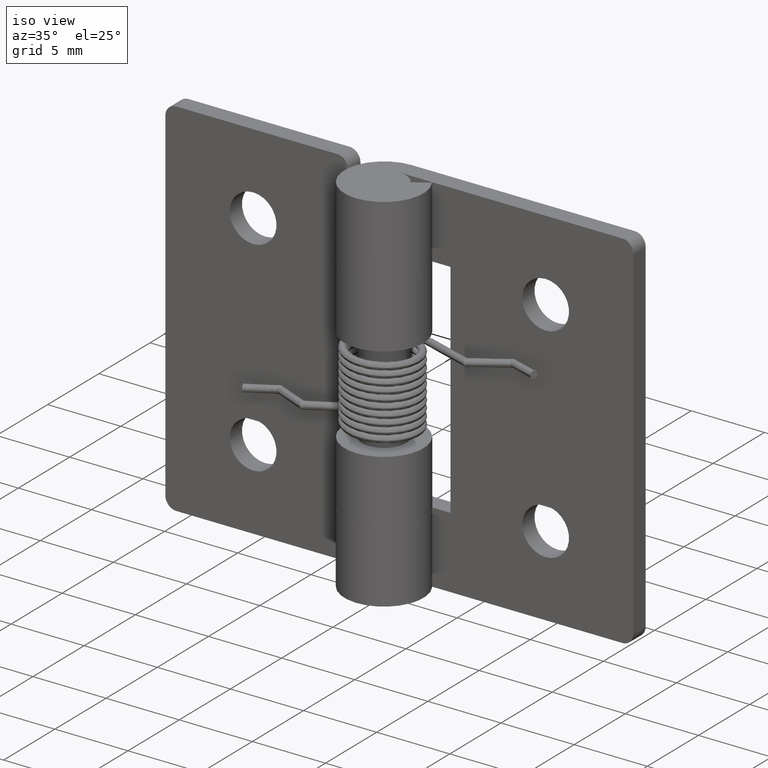
[diagram: clean part render]
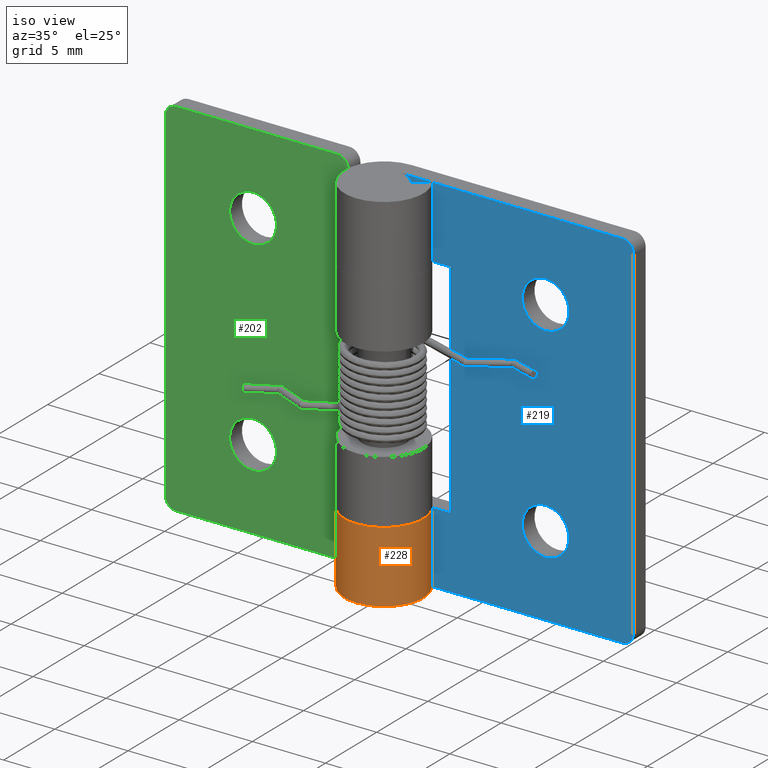
[diagram: same view with three faces highlighted in distinct colors, each labeled with its STEP entity id]
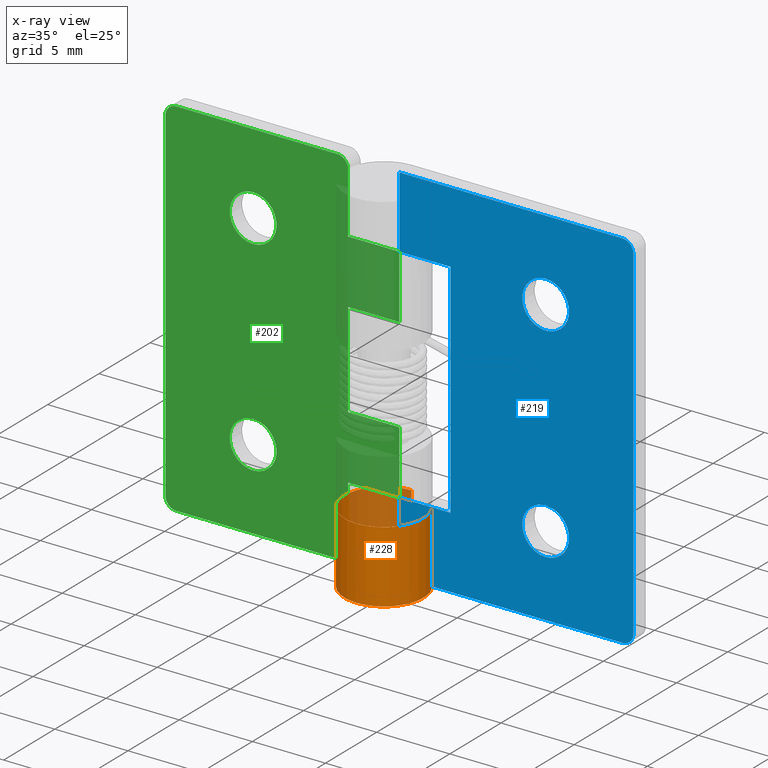
[diagram: x-ray of the same camera — body ghosted, the three highlighted faces saturated]
A machine part, iso view with three faces highlighted in distinct colors.
The next image is the same camera in x-ray (body ghosted, the three faces saturated) — at least one of them is partly hidden behind the body in this view.
Their STEP definitions:

[orange] entity #228 — the highlighted cylindrical surface (partial cylindrical patch) has radius 2.7 mm, axis along (-0, -0, -1).
#228=ADVANCED_FACE('',(#685),#684,.T.);
#684=CYLINDRICAL_SURFACE('',#1185,2.70000000000E+00);
#685=FACE_OUTER_BOUND('',#1186,.T.);
#1182=CARTESIAN_POINT('',(0.00000000000E+00,0.00000000000E+00,-9.75000015000E+02));
#1183=DIRECTION('',(-0.00000000000E+00,-0.00000000000E+00,-1.00000000000E+00));
#1184=DIRECTION('',(4.77158760260E-01,8.78817112662E-01,0.00000000000E+00));
#1185=AXIS2_PLACEMENT_3D('',#1182,#1183,#1184);
#1186=EDGE_LOOP('',(#3184,#3185,#3186,#3187));
#3184=ORIENTED_EDGE('',*,*,#3424,.F.);
#3185=ORIENTED_EDGE('',*,*,#3402,.F.);
#3186=ORIENTED_EDGE('',*,*,#3419,.F.);
#3187=ORIENTED_EDGE('',*,*,#3422,.T.);
#3402=EDGE_CURVE('',#4161,#4168,#4169,.T.);
#3419=EDGE_CURVE('',#4275,#4161,#4282,.T.);
#3422=EDGE_CURVE('',#4275,#4295,#4302,.T.);
#3424=EDGE_CURVE('',#4168,#4295,#4314,.T.);
#4161=VERTEX_POINT('',#5024);
#4168=VERTEX_POINT('',#5028);
#4169=LINE('',#5029,#5030);
#4275=VERTEX_POINT('',#5096);
#4282=CIRCLE('',#5103,2.70000000000E+00);
#4295=VERTEX_POINT('',#5108);
#4302=LINE('',#5112,#5113);
#4314=CIRCLE('',#5121,2.70000000000E+00);
#5024=CARTESIAN_POINT('',(0.00000000000E+00,2.70000500000E+00,0.00000000000E+00));
#5028=CARTESIAN_POINT('',(0.00000000000E+00,2.70000500000E+00,4.89999400000E+00));
#5029=CARTESIAN_POINT('',(0.00000000000E+00,2.70000500000E+00,0.00000000000E+00));
#5030=VECTOR('',#5031,4.89999400000E+00);
#5031=DIRECTION('',(0.00000000000E+00,0.00000000000E+00,1.00000000000E+00));
#5096=CARTESIAN_POINT('',(2.27760839479E+00,1.45000000000E+00,0.00000000000E+00));
#5100=CARTESIAN_POINT('',(0.00000000000E+00,0.00000000000E+00,0.00000000000E+00));
#5101=DIRECTION('',(0.00000000000E+00,0.00000000000E+00,-1.00000000000E+00));
#5102=DIRECTION('',(1.83690953073E-16,1.00000000000E+00,0.00000000000E+00));
#5103=AXIS2_PLACEMENT_3D('',#5100,#5101,#5102);
#5108=CARTESIAN_POINT('',(2.27760839479E+00,1.45000000000E+00,4.89999400000E+00));
#5112=CARTESIAN_POINT('',(2.27760839479E+00,1.45000000000E+00,0.00000000000E+00));
#5113=VECTOR('',#5114,4.89999400000E+00);
#5114=DIRECTION('',(0.00000000000E+00,0.00000000000E+00,1.00000000000E+00));
#5118=CARTESIAN_POINT('',(0.00000000000E+00,0.00000000000E+00,4.89999400000E+00));
#5119=DIRECTION('',(0.00000000000E+00,-0.00000000000E+00,1.00000000000E+00));
#5120=DIRECTION('',(1.83690953073E-16,1.00000000000E+00,0.00000000000E+00));
#5121=AXIS2_PLACEMENT_3D('',#5118,#5119,#5120);

[blue] entity #219 — the highlighted planar face has unit normal (0, -1, 0).
#219=ADVANCED_FACE('',(#591,#592,#593),#590,.T.);
#590=PLANE('',#1136);
#591=FACE_OUTER_BOUND('',#1137,.T.);
#592=FACE_BOUND('',#1138,.T.);
#593=FACE_BOUND('',#1139,.T.);
#1133=CARTESIAN_POINT('',(-1.59999920000E+00,1.50000000000E+00,2.74999835000E+01));
#1134=DIRECTION('',(0.00000000000E+00,-1.00000000000E+00,0.00000000000E+00));
#1135=DIRECTION('',(0.00000000000E+00,0.00000000000E+00,-1.00000000000E+00));
#1136=AXIS2_PLACEMENT_3D('',#1133,#1134,#1135);
#1137=EDGE_LOOP('',(#3122,#3123,#3124,#3125,#3126,#3127,#3128,#3129,#3130,#3131));
#1138=EDGE_LOOP('',(#3132,#3133));
#1139=EDGE_LOOP('',(#3134,#3135));
#3122=ORIENTED_EDGE('',*,*,#3388,.T.);
#3123=ORIENTED_EDGE('',*,*,#3380,.T.);
#3124=ORIENTED_EDGE('',*,*,#3389,.F.);
#3125=ORIENTED_EDGE('',*,*,#3390,.F.);
#3126=ORIENTED_EDGE('',*,*,#3391,.T.);
#3127=ORIENTED_EDGE('',*,*,#3387,.T.);
#3128=ORIENTED_EDGE('',*,*,#3392,.T.);
#3129=ORIENTED_EDGE('',*,*,#3393,.F.);
#3130=ORIENTED_EDGE('',*,*,#3394,.T.);
#3131=ORIENTED_EDGE('',*,*,#3376,.T.);
#3132=ORIENTED_EDGE('',*,*,#3395,.T.);
#3133=ORIENTED_EDGE('',*,*,#3396,.T.);
#3134=ORIENTED_EDGE('',*,*,#3397,.T.);
#3135=ORIENTED_EDGE('',*,*,#3398,.T.);
#3376=EDGE_CURVE('',#3990,#3991,#3992,.T.);
#3380=EDGE_CURVE('',#4018,#4019,#4020,.T.);
#3387=EDGE_CURVE('',#4047,#4061,#4068,.T.);
#3388=EDGE_CURVE('',#3991,#4018,#4074,.T.);
#3389=EDGE_CURVE('',#4080,#4019,#4081,.T.);
#3390=EDGE_CURVE('',#4087,#4080,#4088,.T.);
#3391=EDGE_CURVE('',#4087,#4047,#4094,.T.);
#3392=EDGE_CURVE('',#4061,#4100,#4101,.T.);
#3393=EDGE_CURVE('',#4107,#4100,#4108,.T.);
#3394=EDGE_CURVE('',#4107,#3990,#4114,.T.);
#3395=EDGE_CURVE('',#4120,#4121,#4122,.T.);
#3396=EDGE_CURVE('',#4121,#4120,#4128,.T.);
#3397=EDGE_CURVE('',#4134,#4135,#4136,.T.);
#3398=EDGE_CURVE('',#4135,#4134,#4142,.T.);
#3990=VERTEX_POINT('',#4920);
#3991=VERTEX_POINT('',#4921);
#3992=CIRCLE('',#4925,7.50000000000E-01);
#4018=VERTEX_POINT('',#4938);
#4019=VERTEX_POINT('',#4939);
#4020=CIRCLE('',#4943,7.50000000000E-01);
#4047=VERTEX_POINT('',#4957);
#4061=VERTEX_POINT('',#4965);
#4068=LINE('',#4969,#4970);
#4074=LINE('',#4972,#4973);
#4080=VERTEX_POINT('',#4975);
#4081=LINE('',#4976,#4977);
#4087=VERTEX_POINT('',#4979);
#4088=LINE('',#4980,#4981);
#4094=LINE('',#4983,#4984);
#4100=VERTEX_POINT('',#4986);
#4101=LINE('',#4987,#4988);
#4107=VERTEX_POINT('',#4990);
#4108=LINE('',#4991,#4992);
#4114=LINE('',#4994,#4995);
#4120=VERTEX_POINT('',#4997);
#4121=VERTEX_POINT('',#4998);
#4122=CIRCLE('',#5002,1.60000000000E+00);
#4128=CIRCLE('',#5006,1.60000000000E+00);
#4134=VERTEX_POINT('',#5007);
#4135=VERTEX_POINT('',#5008);
#4136=CIRCLE('',#5012,1.60000000000E+00);
#4142=CIRCLE('',#5016,1.60000000000E+00);
#4920=CARTESIAN_POINT('',(1.52499920000E+01,1.50000000000E+00,0.00000000000E+00));
#4921=CARTESIAN_POINT('',(1.59999920000E+01,1.50000000000E+00,7.50000000000E-01));
#4922=CARTESIAN_POINT('',(1.52499920000E+01,1.50000000000E+00,7.50000000000E-01));
#4923=DIRECTION('',(0.00000000000E+00,-1.00000000000E+00,0.00000000000E+00));
#4924=DIRECTION('',(-0.00000000000E+00,-0.00000000000E+00,-1.00000000000E+00));
#4925=AXIS2_PLACEMENT_3D('',#4922,#4923,#4924);
#4938=CARTESIAN_POINT('',(1.59999920000E+01,1.50000000000E+00,2.42499850000E+01));
#4939=CARTESIAN_POINT('',(1.52499920000E+01,1.50000000000E+00,2.49999850000E+01));
#4940=CARTESIAN_POINT('',(1.52499920000E+01,1.50000000000E+00,2.42499850000E+01));
#4941=DIRECTION('',(0.00000000000E+00,-1.00000000000E+00,0.00000000000E+00));
#4942=DIRECTION('',(-0.00000000000E+00,-0.00000000000E+00,-1.00000000000E+00));
#4943=AXIS2_PLACEMENT_3D('',#4940,#4941,#4942);
#4957=CARTESIAN_POINT('',(3.50000000000E+00,1.50000000000E+00,2.00999980000E+01));
#4965=CARTESIAN_POINT('',(3.50000000000E+00,1.50000000000E+00,4.89999400000E+00));
#4969=CARTESIAN_POINT('',(3.50000000000E+00,1.50000000000E+00,2.00999980000E+01));
#4970=VECTOR('',#4971,1.52000040000E+01);
#4971=DIRECTION('',(0.00000000000E+00,0.00000000000E+00,-1.00000000000E+00));
#4972=CARTESIAN_POINT('',(1.59999920000E+01,1.50000000000E+00,7.50000000000E-01));
#4973=VECTOR('',#4974,2.34999850000E+01);
#4974=DIRECTION('',(0.00000000000E+00,0.00000000000E+00,1.00000000000E+00));
#4975=CARTESIAN_POINT('',(0.00000000000E+00,1.50000000000E+00,2.49999850000E+01));
#4976=CARTESIAN_POINT('',(0.00000000000E+00,1.50000000000E+00,2.49999850000E+01));
#4977=VECTOR('',#4978,1.52499920000E+01);
#4978=DIRECTION('',(1.00000000000E+00,0.00000000000E+00,0.00000000000E+00));
#4979=CARTESIAN_POINT('',(0.00000000000E+00,1.50000000000E+00,2.00999980000E+01));
#4980=CARTESIAN_POINT('',(0.00000000000E+00,1.50000000000E+00,2.00999980000E+01));
#4981=VECTOR('',#4982,4.89998700000E+00);
#4982=DIRECTION('',(0.00000000000E+00,0.00000000000E+00,1.00000000000E+00));
#4983=CARTESIAN_POINT('',(0.00000000000E+00,1.50000000000E+00,2.00999980000E+01));
#4984=VECTOR('',#4985,3.50000000000E+00);
#4985=DIRECTION('',(1.00000000000E+00,0.00000000000E+00,0.00000000000E+00));
#4986=CARTESIAN_POINT('',(0.00000000000E+00,1.50000000000E+00,4.89999400000E+00));
#4987=CARTESIAN_POINT('',(3.50000000000E+00,1.50000000000E+00,4.89999400000E+00));
#4988=VECTOR('',#4989,3.50000000000E+00);
#4989=DIRECTION('',(-1.00000000000E+00,0.00000000000E+00,0.00000000000E+00));
#4990=CARTESIAN_POINT('',(0.00000000000E+00,1.50000000000E+00,0.00000000000E+00));
#4991=CARTESIAN_POINT('',(0.00000000000E+00,1.50000000000E+00,0.00000000000E+00));
#4992=VECTOR('',#4993,4.89999400000E+00);
#4993=DIRECTION('',(0.00000000000E+00,0.00000000000E+00,1.00000000000E+00));
#4994=CARTESIAN_POINT('',(0.00000000000E+00,1.50000000000E+00,0.00000000000E+00));
#4995=VECTOR('',#4996,1.52499920000E+01);
#4996=DIRECTION('',(1.00000000000E+00,0.00000000000E+00,0.00000000000E+00));
#4997=CARTESIAN_POINT('',(9.99999300000E+00,1.50000000000E+00,2.10999920000E+01));
#4998=CARTESIAN_POINT('',(9.99999300000E+00,1.50000000000E+00,1.78999920000E+01));
#4999=CARTESIAN_POINT('',(9.99999300000E+00,1.50000000000E+00,1.94999920000E+01));
#5000=DIRECTION('',(0.00000000000E+00,1.00000000000E+00,0.00000000000E+00));
#5001=DIRECTION('',(-1.22460635382E-16,0.00000000000E+00,1.00000000000E+00));
#5002=AXIS2_PLACEMENT_3D('',#4999,#5000,#5001);
#5003=CARTESIAN_POINT('',(9.99999300000E+00,1.50000000000E+00,1.94999920000E+01));
#5004=DIRECTION('',(0.00000000000E+00,1.00000000000E+00,0.00000000000E+00));
#5005=DIRECTION('',(-1.22460635382E-16,0.00000000000E+00,1.00000000000E+00));
#5006=AXIS2_PLACEMENT_3D('',#5003,#5004,#5005);
#5007=CARTESIAN_POINT('',(9.99999300000E+00,1.50000000000E+00,7.10000000000E+00));
#5008=CARTESIAN_POINT('',(9.99999300000E+00,1.50000000000E+00,3.90000000000E+00));
#5009=CARTESIAN_POINT('',(9.99999300000E+00,1.50000000000E+00,5.50000000000E+00));
#5010=DIRECTION('',(0.00000000000E+00,1.00000000000E+00,0.00000000000E+00));
#5011=DIRECTION('',(-1.22460635382E-16,0.00000000000E+00,1.00000000000E+00));
#5012=AXIS2_PLACEMENT_3D('',#5009,#5010,#5011);
#5013=CARTESIAN_POINT('',(9.99999300000E+00,1.50000000000E+00,5.50000000000E+00));
#5014=DIRECTION('',(0.00000000000E+00,1.00000000000E+00,0.00000000000E+00));
#5015=DIRECTION('',(-1.22460635382E-16,0.00000000000E+00,1.00000000000E+00));
#5016=AXIS2_PLACEMENT_3D('',#5013,#5014,#5015);

[green] entity #202 — the highlighted planar face has unit normal (0, 1, 0).
#202=ADVANCED_FACE('',(#419,#420,#421),#418,.F.);
#418=PLANE('',#1049);
#419=FACE_OUTER_BOUND('',#1050,.T.);
#420=FACE_BOUND('',#1051,.T.);
#421=FACE_BOUND('',#1052,.T.);
#1046=CARTESIAN_POINT('',(-1.76000088000E+01,1.50000000000E+00,-2.49999850000E+00));
#1047=DIRECTION('',(0.00000000000E+00,1.00000000000E+00,0.00000000000E+00));
#1048=DIRECTION('',(0.00000000000E+00,0.00000000000E+00,1.00000000000E+00));
#1049=AXIS2_PLACEMENT_3D('',#1046,#1047,#1048);
#1050=EDGE_LOOP('',(#3038,#3039,#3040,#3041,#3042,#3043,#3044,#3045,#3046,#3047,#3048,#3049,#3050,#3051,#3052,#3053));
#1051=EDGE_LOOP('',(#3054,#3055));
#1052=EDGE_LOOP('',(#3056,#3057));
#3038=ORIENTED_EDGE('',*,*,#3324,.T.);
#3039=ORIENTED_EDGE('',*,*,#3359,.T.);
#3040=ORIENTED_EDGE('',*,*,#3331,.T.);
#3041=ORIENTED_EDGE('',*,*,#3360,.F.);
#3042=ORIENTED_EDGE('',*,*,#3334,.T.);
#3043=ORIENTED_EDGE('',*,*,#3361,.F.);
#3044=ORIENTED_EDGE('',*,*,#3327,.T.);
#3045=ORIENTED_EDGE('',*,*,#3354,.T.);
#3046=ORIENTED_EDGE('',*,*,#3358,.T.);
#3047=ORIENTED_EDGE('',*,*,#3362,.T.);
#3048=ORIENTED_EDGE('',*,*,#3338,.F.);
#3049=ORIENTED_EDGE('',*,*,#3346,.F.);
#3050=ORIENTED_EDGE('',*,*,#3344,.F.);
#3051=ORIENTED_EDGE('',*,*,#3363,.T.);
#3052=ORIENTED_EDGE('',*,*,#3348,.T.);
#3053=ORIENTED_EDGE('',*,*,#3352,.T.);
#3054=ORIENTED_EDGE('',*,*,#3364,.T.);
#3055=ORIENTED_EDGE('',*,*,#3365,.T.);
#3056=ORIENTED_EDGE('',*,*,#3366,.T.);
#3057=ORIENTED_EDGE('',*,*,#3367,.T.);
#3324=EDGE_CURVE('',#3650,#3651,#3652,.T.);
#3327=EDGE_CURVE('',#3670,#3671,#3672,.T.);
#3331=EDGE_CURVE('',#3697,#3690,#3698,.T.);
#3334=EDGE_CURVE('',#3717,#3710,#3718,.T.);
#3338=EDGE_CURVE('',#3737,#3744,#3745,.T.);
#3344=EDGE_CURVE('',#3778,#3785,#3786,.T.);
#3346=EDGE_CURVE('',#3785,#3737,#3798,.T.);
#3348=EDGE_CURVE('',#3811,#3804,#3812,.T.);
#3352=EDGE_CURVE('',#3804,#3650,#3838,.T.);
#3354=EDGE_CURVE('',#3671,#3844,#3851,.T.);
#3358=EDGE_CURVE('',#3844,#3871,#3878,.T.);
#3359=EDGE_CURVE('',#3651,#3697,#3884,.T.);
#3360=EDGE_CURVE('',#3717,#3690,#3890,.T.);
#3361=EDGE_CURVE('',#3670,#3710,#3896,.T.);
#3362=EDGE_CURVE('',#3871,#3744,#3902,.T.);
#3363=EDGE_CURVE('',#3778,#3811,#3908,.T.);
#3364=EDGE_CURVE('',#3914,#3915,#3916,.T.);
#3365=EDGE_CURVE('',#3915,#3914,#3922,.T.);
#3366=EDGE_CURVE('',#3928,#3929,#3930,.T.);
#3367=EDGE_CURVE('',#3929,#3928,#3936,.T.);
#3650=VERTEX_POINT('',#4724);
#3651=VERTEX_POINT('',#4725);
#3652=CIRCLE('',#4729,7.50000000000E-01);
#3670=VERTEX_POINT('',#4736);
#3671=VERTEX_POINT('',#4737);
#3672=CIRCLE('',#4741,7.50000000000E-01);
#3690=VERTEX_POINT('',#4748);
#3697=VERTEX_POINT('',#4752);
#3698=CIRCLE('',#4756,7.50000000000E-01);
#3710=VERTEX_POINT('',#4760);
#3717=VERTEX_POINT('',#4764);
#3718=CIRCLE('',#4768,7.50000000000E-01);
#3737=VERTEX_POINT('',#4777);
#3744=VERTEX_POINT('',#4781);
#3745=LINE('',#4782,#4783);
#3778=VERTEX_POINT('',#4802);
#3785=VERTEX_POINT('',#4807);
#3786=LINE('',#4808,#4809);
#3798=LINE('',#4814,#4815);
#3804=VERTEX_POINT('',#4817);
#3811=VERTEX_POINT('',#4821);
#3812=LINE('',#4822,#4823);
#3838=LINE('',#4838,#4839);
#3844=VERTEX_POINT('',#4841);
#3851=LINE('',#4845,#4846);
#3871=VERTEX_POINT('',#4857);
#3878=LINE('',#4862,#4863);
#3884=LINE('',#4865,#4866);
#3890=LINE('',#4868,#4869);
#3896=LINE('',#4871,#4872);
#3902=LINE('',#4874,#4875);
#3908=LINE('',#4877,#4878);
#3914=VERTEX_POINT('',#4880);
#3915=VERTEX_POINT('',#4881);
#3916=CIRCLE('',#4885,1.60000000000E+00);
#3922=CIRCLE('',#4889,1.60000000000E+00);
#3928=VERTEX_POINT('',#4890);
#3929=VERTEX_POINT('',#4891);
#3930=CIRCLE('',#4895,1.60000000000E+00);
#3936=CIRCLE('',#4899,1.60000000000E+00);
#4724=CARTESIAN_POINT('',(-3.50000000000E+00,1.50000000000E+00,2.42499850000E+01));
#4725=CARTESIAN_POINT('',(-4.25000000000E+00,1.50000000000E+00,2.49999850000E+01));
#4726=CARTESIAN_POINT('',(-4.25000000000E+00,1.50000000000E+00,2.42499850000E+01));
#4727=DIRECTION('',(0.00000000000E+00,-1.00000000000E+00,0.00000000000E+00));
#4728=DIRECTION('',(-0.00000000000E+00,-0.00000000000E+00,-1.00000000000E+00));
#4729=AXIS2_PLACEMENT_3D('',#4726,#4727,#4728);
#4736=CARTESIAN_POINT('',(-4.25000000000E+00,1.50000000000E+00,0.00000000000E+00));
#4737=CARTESIAN_POINT('',(-3.50000000000E+00,1.50000000000E+00,7.50000000000E-01));
#4738=CARTESIAN_POINT('',(-4.25000000000E+00,1.50000000000E+00,7.50000000000E-01));
#4739=DIRECTION('',(0.00000000000E+00,-1.00000000000E+00,0.00000000000E+00));
#4740=DIRECTION('',(-0.00000000000E+00,-0.00000000000E+00,-1.00000000000E+00));
#4741=AXIS2_PLACEMENT_3D('',#4738,#4739,#4740);
#4748=CARTESIAN_POINT('',(-1.60000080000E+01,1.50000000000E+00,2.42499850000E+01));
#4752=CARTESIAN_POINT('',(-1.52500080000E+01,1.50000000000E+00,2.49999850000E+01));
#4753=CARTESIAN_POINT('',(-1.52500080000E+01,1.50000000000E+00,2.42499850000E+01));
#4754=DIRECTION('',(0.00000000000E+00,-1.00000000000E+00,0.00000000000E+00));
#4755=DIRECTION('',(-0.00000000000E+00,-0.00000000000E+00,-1.00000000000E+00));
#4756=AXIS2_PLACEMENT_3D('',#4753,#4754,#4755);
#4760=CARTESIAN_POINT('',(-1.52500080000E+01,1.50000000000E+00,0.00000000000E+00));
#4764=CARTESIAN_POINT('',(-1.60000080000E+01,1.50000000000E+00,7.50000000000E-01));
#4765=CARTESIAN_POINT('',(-1.52500080000E+01,1.50000000000E+00,7.50000000000E-01));
#4766=DIRECTION('',(0.00000000000E+00,-1.00000000000E+00,0.00000000000E+00));
#4767=DIRECTION('',(-0.00000000000E+00,-0.00000000000E+00,-1.00000000000E+00));
#4768=AXIS2_PLACEMENT_3D('',#4765,#4766,#4767);
#4777=CARTESIAN_POINT('',(-3.50000000000E+00,1.50000000000E+00,9.24999200000E+00));
#4781=CARTESIAN_POINT('',(9.18435177730E-17,1.50000000000E+00,9.24999200000E+00));
#4782=CARTESIAN_POINT('',(-3.50000000000E+00,1.50000000000E+00,9.24999200000E+00));
#4783=VECTOR('',#4784,3.50000000000E+00);
#4784=DIRECTION('',(1.00000000000E+00,0.00000000000E+00,0.00000000000E+00));
#4802=CARTESIAN_POINT('',(9.18435177730E-17,1.50000000000E+00,1.57499920000E+01));
#4807=CARTESIAN_POINT('',(-3.50000000000E+00,1.50000000000E+00,1.57499920000E+01));
#4808=CARTESIAN_POINT('',(9.18435177730E-17,1.50000000000E+00,1.57499920000E+01));
#4809=VECTOR('',#4810,3.50000000000E+00);
#4810=DIRECTION('',(-1.00000000000E+00,0.00000000000E+00,0.00000000000E+00));
#4814=CARTESIAN_POINT('',(-3.50000000000E+00,1.50000000000E+00,1.57499920000E+01));
#4815=VECTOR('',#4816,6.50000000000E+00);
#4816=DIRECTION('',(0.00000000000E+00,0.00000000000E+00,-1.00000000000E+00));
#4817=CARTESIAN_POINT('',(-3.50000000000E+00,1.50000000000E+00,2.00999980000E+01));
#4821=CARTESIAN_POINT('',(9.18435177730E-17,1.50000000000E+00,2.00999980000E+01));
#4822=CARTESIAN_POINT('',(9.18435177730E-17,1.50000000000E+00,2.00999980000E+01));
#4823=VECTOR('',#4824,3.50000000000E+00);
#4824=DIRECTION('',(-1.00000000000E+00,0.00000000000E+00,0.00000000000E+00));
#4838=CARTESIAN_POINT('',(-3.50000000000E+00,1.50000000000E+00,2.00999980000E+01));
#4839=VECTOR('',#4840,4.14998700000E+00);
#4840=DIRECTION('',(0.00000000000E+00,0.00000000000E+00,1.00000000000E+00));
#4841=CARTESIAN_POINT('',(-3.50000000000E+00,1.50000000000E+00,4.89999400000E+00));
#4845=CARTESIAN_POINT('',(-3.50000000000E+00,1.50000000000E+00,7.50000000000E-01));
#4846=VECTOR('',#4847,4.14999400000E+00);
#4847=DIRECTION('',(0.00000000000E+00,0.00000000000E+00,1.00000000000E+00));
#4857=CARTESIAN_POINT('',(9.18435177730E-17,1.50000000000E+00,4.89999400000E+00));
#4862=CARTESIAN_POINT('',(-3.50000000000E+00,1.50000000000E+00,4.89999400000E+00));
#4863=VECTOR('',#4864,3.50000000000E+00);
#4864=DIRECTION('',(1.00000000000E+00,0.00000000000E+00,0.00000000000E+00));
#4865=CARTESIAN_POINT('',(-4.25000000000E+00,1.50000000000E+00,2.49999850000E+01));
#4866=VECTOR('',#4867,1.10000080000E+01);
#4867=DIRECTION('',(-1.00000000000E+00,0.00000000000E+00,0.00000000000E+00));
#4868=CARTESIAN_POINT('',(-1.60000080000E+01,1.50000000000E+00,7.50000000000E-01));
#4869=VECTOR('',#4870,2.34999850000E+01);
#4870=DIRECTION('',(0.00000000000E+00,0.00000000000E+00,1.00000000000E+00));
#4871=CARTESIAN_POINT('',(-4.25000000000E+00,1.50000000000E+00,0.00000000000E+00));
#4872=VECTOR('',#4873,1.10000080000E+01);
#4873=DIRECTION('',(-1.00000000000E+00,0.00000000000E+00,0.00000000000E+00));
#4874=CARTESIAN_POINT('',(9.18454765367E-17,1.50000000000E+00,4.89999400000E+00));
#4875=VECTOR('',#4876,4.34999800000E+00);
#4876=DIRECTION('',(0.00000000000E+00,0.00000000000E+00,1.00000000000E+00));
#4877=CARTESIAN_POINT('',(9.18454765367E-17,1.50000000000E+00,1.57499920000E+01));
#4878=VECTOR('',#4879,4.35000600000E+00);
#4879=DIRECTION('',(0.00000000000E+00,0.00000000000E+00,1.00000000000E+00));
#4880=CARTESIAN_POINT('',(-1.00000070000E+01,1.50000000000E+00,2.10999920000E+01));
#4881=CARTESIAN_POINT('',(-1.00000070000E+01,1.50000000000E+00,1.78999920000E+01));
#4882=CARTESIAN_POINT('',(-1.00000070000E+01,1.50000000000E+00,1.94999920000E+01));
#4883=DIRECTION('',(0.00000000000E+00,1.00000000000E+00,0.00000000000E+00));
#4884=DIRECTION('',(-1.22460635382E-16,0.00000000000E+00,1.00000000000E+00));
#4885=AXIS2_PLACEMENT_3D('',#4882,#4883,#4884);
#4886=CARTESIAN_POINT('',(-1.00000070000E+01,1.50000000000E+00,1.94999920000E+01));
#4887=DIRECTION('',(0.00000000000E+00,1.00000000000E+00,0.00000000000E+00));
#4888=DIRECTION('',(-1.22460635382E-16,0.00000000000E+00,1.00000000000E+00));
#4889=AXIS2_PLACEMENT_3D('',#4886,#4887,#4888);
#4890=CARTESIAN_POINT('',(-1.00000070000E+01,1.50000000000E+00,7.10000000000E+00));
#4891=CARTESIAN_POINT('',(-1.00000070000E+01,1.50000000000E+00,3.90000000000E+00));
#4892=CARTESIAN_POINT('',(-1.00000070000E+01,1.50000000000E+00,5.50000000000E+00));
#4893=DIRECTION('',(0.00000000000E+00,1.00000000000E+00,0.00000000000E+00));
#4894=DIRECTION('',(-1.22460635382E-16,0.00000000000E+00,1.00000000000E+00));
#4895=AXIS2_PLACEMENT_3D('',#4892,#4893,#4894);
#4896=CARTESIAN_POINT('',(-1.00000070000E+01,1.50000000000E+00,5.50000000000E+00));
#4897=DIRECTION('',(0.00000000000E+00,1.00000000000E+00,0.00000000000E+00));
#4898=DIRECTION('',(-1.22460635382E-16,0.00000000000E+00,1.00000000000E+00));
#4899=AXIS2_PLACEMENT_3D('',#4896,#4897,#4898);